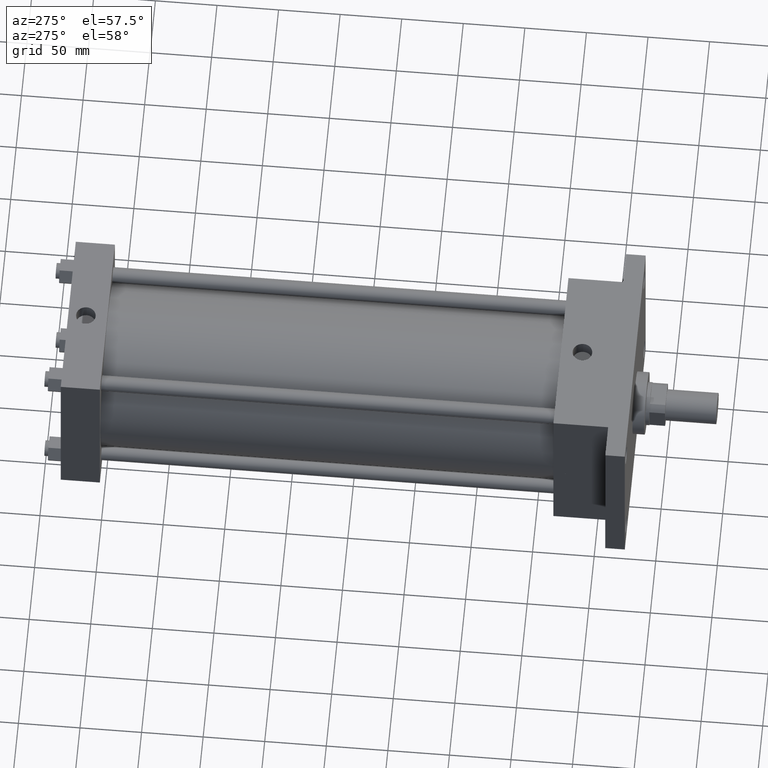
[diagram: clean part render]
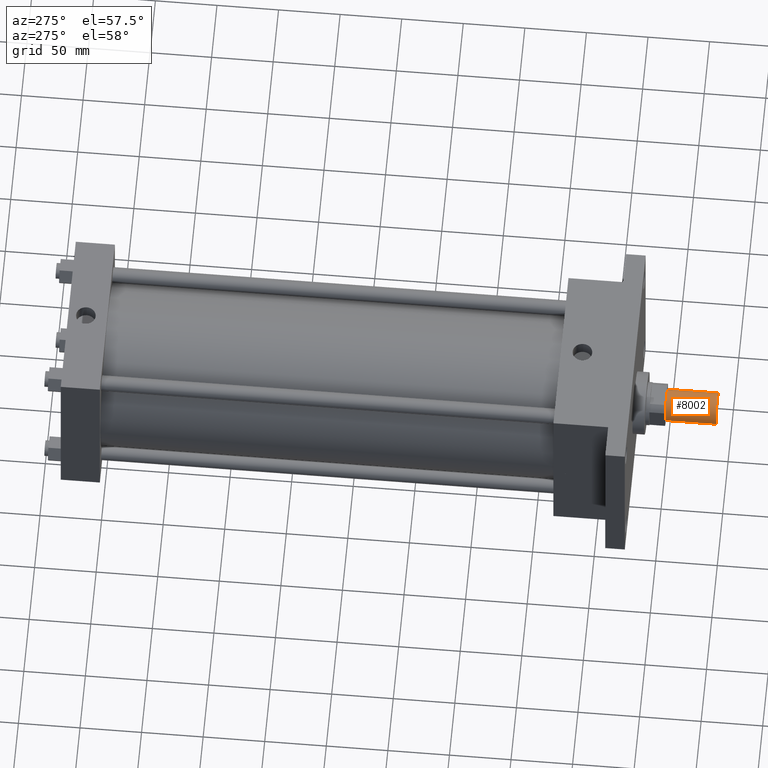
[diagram: same view with one face highlighted and labeled with its STEP entity id]
A machine part, auxiliary view. The second image highlights one B-rep face of the part: STEP entity #8002.
In plain terms, the highlighted cylindrical surface (bore or boss wall) has radius 12.7 mm, axis along (0, 1, 0).
Its self-contained STEP definition (entity closure, byte-faithful):
#91=FACE_OUTER_BOUND('',#93,.T.);
#92=FACE_BOUND('',#94,.T.);
#93=EDGE_LOOP('',(#95));
#94=EDGE_LOOP('',(#104));
#95=ORIENTED_EDGE('',*,*,#96,.T.);
#96=EDGE_CURVE('',#102,#102,#97,.T.);
#97=CIRCLE('',#98,1.270000000E+001);
#98=AXIS2_PLACEMENT_3D('',#99,#100,#101);
#99=CARTESIAN_POINT('',(0.000000000E+000,-4.127500000E+001,0.000000000E+000));
#100=DIRECTION('',(0.0E+000,1.0E+000,0.0E+000));
#101=DIRECTION('',(1.0E+000,0.0E+000,0.0E+000));
#102=VERTEX_POINT('',#103);
#103=CARTESIAN_POINT('',(1.270000000E+001,-4.127500000E+001,0.000000000E+000));
#104=ORIENTED_EDGE('',*,*,#118,.F.);
#105=CYLINDRICAL_SURFACE('',#106,1.270000000E+001);
#106=AXIS2_PLACEMENT_3D('',#107,#108,#109);
#107=CARTESIAN_POINT('',(0.000000000E+000,-4.127500000E+001,0.000000000E+000));
#108=DIRECTION('',(0.0E+000,1.0E+000,0.0E+000));
#109=DIRECTION('',(0.0E+000,0.0E+000,1.0E+000));
#118=EDGE_CURVE('',#124,#124,#119,.T.);
#119=CIRCLE('',#120,1.270000000E+001);
#120=AXIS2_PLACEMENT_3D('',#121,#122,#123);
#121=CARTESIAN_POINT('',(0.000000000E+000,0.000000000E+000,0.000000000E+000));
#122=DIRECTION('',(0.0E+000,1.0E+000,0.0E+000));
#123=DIRECTION('',(1.0E+000,0.0E+000,0.0E+000));
#124=VERTEX_POINT('',#125);
#125=CARTESIAN_POINT('',(1.270000000E+001,0.000000000E+000,0.000000000E+000));
#8002=ADVANCED_FACE('',(#91,#92),#105,.T.);